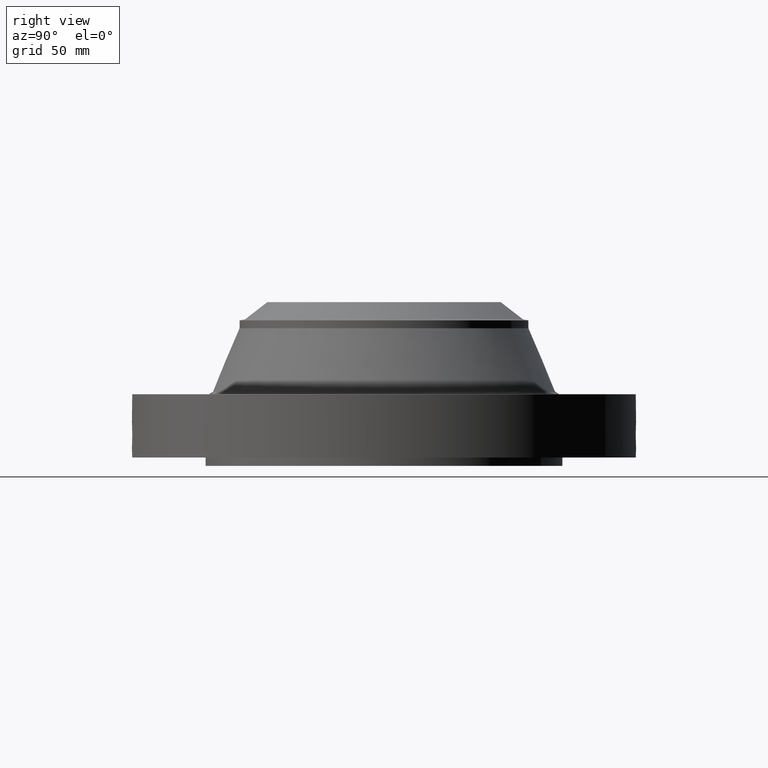
[diagram: clean part render]
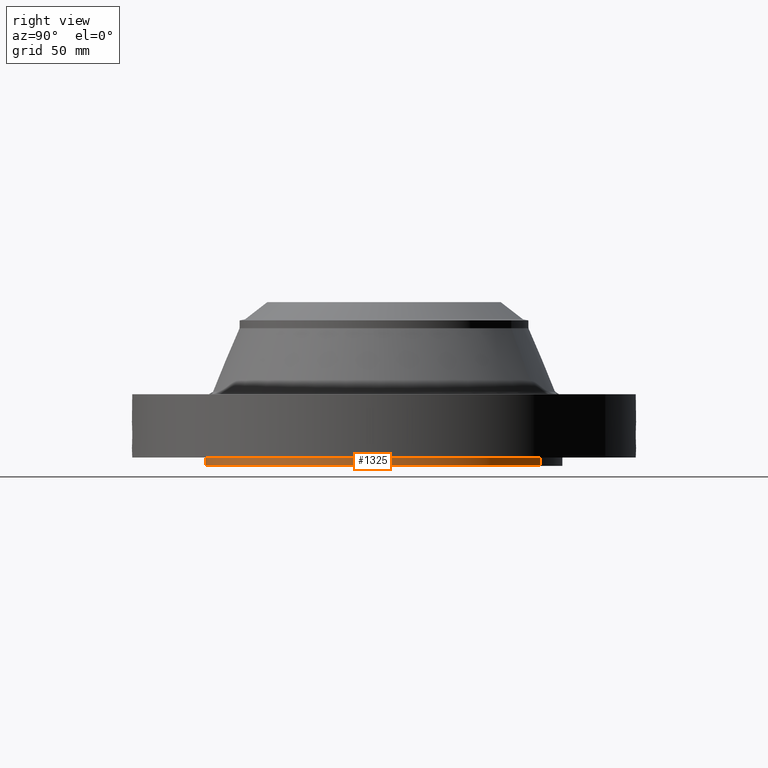
[diagram: same view with one face highlighted and labeled with its STEP entity id]
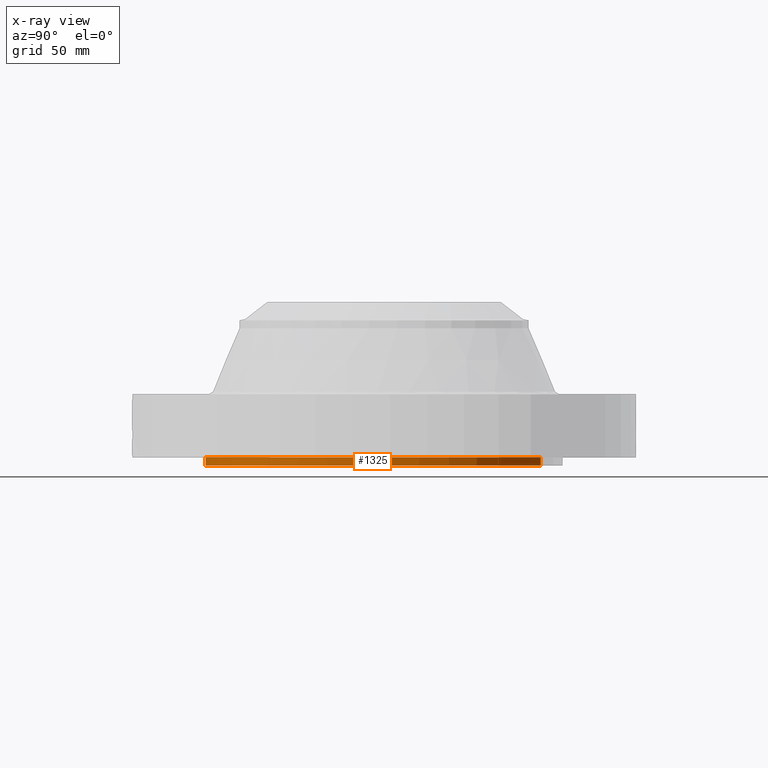
[diagram: x-ray of the same camera — body ghosted, the highlighted face saturated]
A machine part, right view. The second image highlights one B-rep face of the part: STEP entity #1325.
The next image is the same camera in x-ray: the body ghosted, the highlighted face saturated — about 0% of this face is hidden behind the body in this view.
In plain terms, the highlighted cylindrical surface (partial cylindrical patch) has radius 134.874 mm, axis along (0, 0, -1).
Its self-contained STEP definition (entity closure, byte-faithful):
#244=AXIS2_PLACEMENT_3D('Circle Axis2P3D',#242,#243,$) ;
#1298=AXIS2_PLACEMENT_3D('Cylinder Axis2P3D',#1295,#1296,#1297) ;
#1302=AXIS2_PLACEMENT_3D('Circle Axis2P3D',#1300,#1301,$) ;
#242=CARTESIAN_POINT('Axis2P3D Location',(0.,0.,0.250000000001)) ;
#246=CARTESIAN_POINT('Vertex',(2.54574961,4.65996340366,0.250000000001)) ;
#248=CARTESIAN_POINT('Vertex',(-2.54574961,-4.65996340366,0.250000000001)) ;
#1295=CARTESIAN_POINT('Axis2P3D Location',(0.,0.,2.43500000001)) ;
#1300=CARTESIAN_POINT('Axis2P3D Location',(0.,0.,5.59482469102E-016)) ;
#1304=CARTESIAN_POINT('Vertex',(2.54574961,4.65996340366,5.59482469102E-016)) ;
#1306=CARTESIAN_POINT('Vertex',(-2.54574961,-4.65996340366,5.59482469102E-016)) ;
#1309=CARTESIAN_POINT('Line Origine',(2.54574961,4.65996340366,0.125000000001)) ;
#1314=CARTESIAN_POINT('Line Origine',(-2.54574961,-4.65996340366,0.125000000001)) ;
#243=DIRECTION('Axis2P3D Direction',(0.,0.,-0.0393700787402)) ;
#1296=DIRECTION('Axis2P3D Direction',(0.,0.,-0.0393700787402)) ;
#1297=DIRECTION('Axis2P3D XDirection',(-0.0188750212049,-0.0345504945626,0.)) ;
#1301=DIRECTION('Axis2P3D Direction',(0.,0.,-0.0393700787402)) ;
#1310=DIRECTION('Vector Direction',(0.,0.,-0.0393700787402)) ;
#1315=DIRECTION('Vector Direction',(0.,0.,-0.0393700787402)) ;
#1311=VECTOR('Line Direction',#1310,0.0393700787402) ;
#1316=VECTOR('Line Direction',#1315,0.0393700787402) ;
#1320=ORIENTED_EDGE('',*,*,#1308,.F.) ;
#1321=ORIENTED_EDGE('',*,*,#1313,.T.) ;
#1322=ORIENTED_EDGE('',*,*,#250,.T.) ;
#1323=ORIENTED_EDGE('',*,*,#1318,.F.) ;
#1325=ADVANCED_FACE('PartBody',(#1324),#1299,.T.) ;
#245=CIRCLE('generated circle',#244,5.31000000002) ;
#1303=CIRCLE('generated circle',#1302,5.31000000002) ;
#1299=CYLINDRICAL_SURFACE('generated cylinder',#1298,5.31000000002) ;
#250=EDGE_CURVE('',#247,#249,#245,.T.) ;
#1308=EDGE_CURVE('',#1305,#1307,#1303,.T.) ;
#1313=EDGE_CURVE('',#1305,#247,#1312,.F.) ;
#1318=EDGE_CURVE('',#1307,#249,#1317,.F.) ;
#1319=EDGE_LOOP('',(#1320,#1321,#1322,#1323)) ;
#1324=FACE_OUTER_BOUND('',#1319,.T.) ;
#1312=LINE('Line',#1309,#1311) ;
#1317=LINE('Line',#1314,#1316) ;
#247=VERTEX_POINT('',#246) ;
#249=VERTEX_POINT('',#248) ;
#1305=VERTEX_POINT('',#1304) ;
#1307=VERTEX_POINT('',#1306) ;